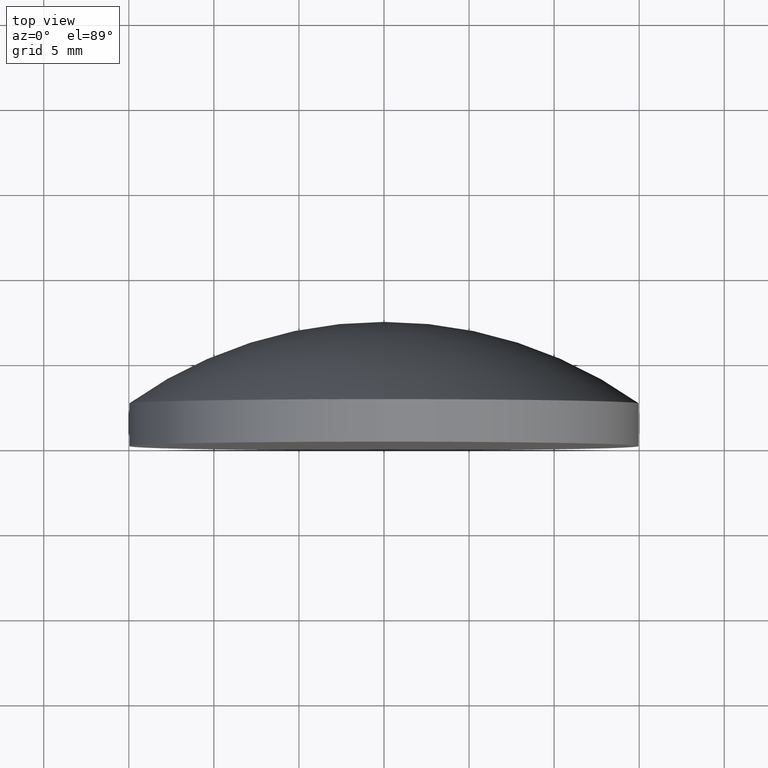
[diagram: clean part render]
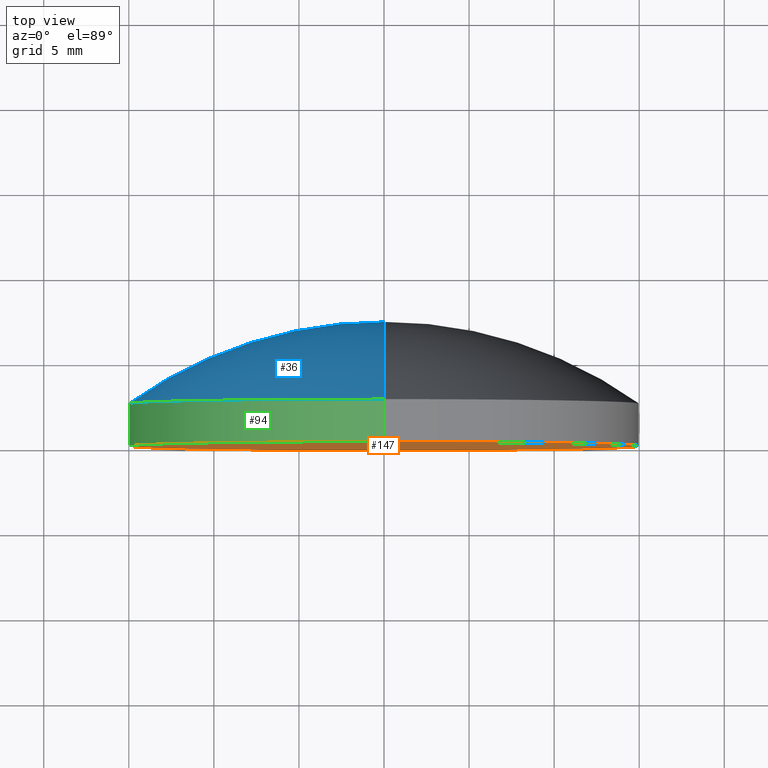
[diagram: same view with three faces highlighted in distinct colors, each labeled with its STEP entity id]
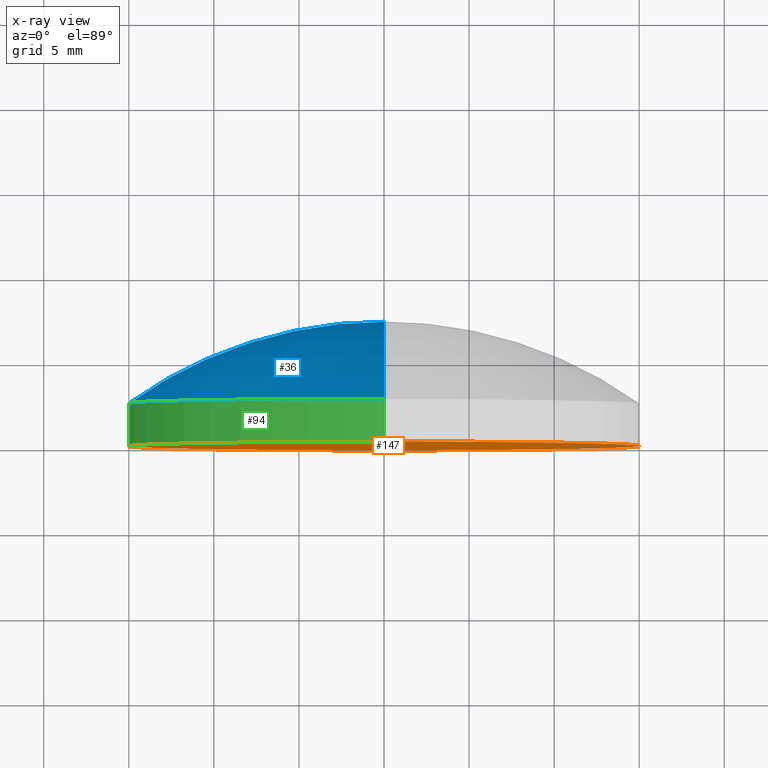
[diagram: x-ray of the same camera — body ghosted, the three highlighted faces saturated]
A machine part, top view with three faces highlighted in distinct colors.
The next image is the same camera in x-ray (body ghosted, the three faces saturated) — at least one of them is partly hidden behind the body in this view.
Their STEP definitions:

[orange] entity #147 — the highlighted planar face has unit normal (0, -1, 0).
#4 = VERTEX_POINT ( 'NONE', #62 ) ;
#6 = DIRECTION ( 'NONE',  ( -0.000000000000000000, 1.000000000000000000, -0.000000000000000000 ) ) ;
#21 = CARTESIAN_POINT ( 'NONE',  ( 0.000000000000000000, -1.734723475976807094E-15, 0.000000000000000000 ) ) ;
#24 = EDGE_CURVE ( 'NONE', #4, #48, #83, .T. ) ;
#29 = CIRCLE ( 'NONE', #76, 15.00000000000000000 ) ;
#30 = EDGE_LOOP ( 'NONE', ( #32, #133 ) ) ;
#32 = ORIENTED_EDGE ( 'NONE', *, *, #24, .F. ) ;
#48 = VERTEX_POINT ( 'NONE', #75 ) ;
#52 = DIRECTION ( 'NONE',  ( 0.000000000000000000, -1.000000000000000000, 0.000000000000000000 ) ) ;
#62 = CARTESIAN_POINT ( 'NONE',  ( 0.000000000000000000, -1.734723475976807094E-15, 15.00000000000000000 ) ) ;
#64 = CARTESIAN_POINT ( 'NONE',  ( 0.000000000000000000, -9.184850993605147944E-16, 0.000000000000000000 ) ) ;
#75 = CARTESIAN_POINT ( 'NONE',  ( 1.836970198721029589E-15, -1.734723475976807094E-15, -15.00000000000000000 ) ) ;
#76 = AXIS2_PLACEMENT_3D ( 'NONE', #21, #6, #171 ) ;
#78 = PLANE ( 'NONE',  #178 ) ;
#83 = CIRCLE ( 'NONE', #154, 15.00000000000000000 ) ;
#108 = EDGE_CURVE ( 'NONE', #48, #4, #29, .T. ) ;
#110 = DIRECTION ( 'NONE',  ( -0.000000000000000000, 1.000000000000000000, -0.000000000000000000 ) ) ;
#114 = DIRECTION ( 'NONE',  ( 0.000000000000000000, -0.000000000000000000, -1.000000000000000000 ) ) ;
#128 = CARTESIAN_POINT ( 'NONE',  ( 0.000000000000000000, -1.734723475976807094E-15, 0.000000000000000000 ) ) ;
#130 = FACE_OUTER_BOUND ( 'NONE', #30, .T. ) ;
#133 = ORIENTED_EDGE ( 'NONE', *, *, #108, .F. ) ;
#147 = ADVANCED_FACE ( 'NONE', ( #130 ), #78, .T. ) ;
#154 = AXIS2_PLACEMENT_3D ( 'NONE', #128, #110, #180 ) ;
#171 = DIRECTION ( 'NONE',  ( 0.000000000000000000, 0.000000000000000000, 1.000000000000000000 ) ) ;
#178 = AXIS2_PLACEMENT_3D ( 'NONE', #64, #52, #114 ) ;
#180 = DIRECTION ( 'NONE',  ( 0.000000000000000000, 0.000000000000000000, 1.000000000000000000 ) ) ;

[blue] entity #36 — the highlighted toroidal blend (fillet) surface has major radius 0.0008 mm and minor (blend) radius 25.84 mm.
#1 = CIRCLE ( 'NONE', #146, 15.00000000000000000 ) ;
#3 = DIRECTION ( 'NONE',  ( 1.000000000000000000, 0.000000000000000000, 1.224646799147353207E-16 ) ) ;
#5 = CARTESIAN_POINT ( 'NONE',  ( 0.000000000000000000, 2.499999999999998224, 15.00000000000000178 ) ) ;
#9 = ORIENTED_EDGE ( 'NONE', *, *, #199, .T. ) ;
#13 = DIRECTION ( 'NONE',  ( 0.000000000000000000, 0.000000000000000000, 1.000000000000000000 ) ) ;
#16 = CARTESIAN_POINT ( 'NONE',  ( -9.797125862820881380E-20, -18.53999998761622692, 0.0007999960371955425198 ) ) ;
#23 = DIRECTION ( 'NONE',  ( 0.000000000000000000, 0.000000000000000000, 1.000000000000000000 ) ) ;
#25 = CARTESIAN_POINT ( 'NONE',  ( 0.000000000000000000, -18.53999998761622692, -0.0007999960371955425198 ) ) ;
#31 = CARTESIAN_POINT ( 'NONE',  ( 0.000000000000000000, -18.53999998761622692, 0.000000000000000000 ) ) ;
#34 = AXIS2_PLACEMENT_3D ( 'NONE', #16, #3, #65 ) ;
#36 = ADVANCED_FACE ( 'NONE', ( #74 ), #72, .T. ) ;
#45 = VERTEX_POINT ( 'NONE', #197 ) ;
#53 = DIRECTION ( 'NONE',  ( 0.000000000000000000, 0.000000000000000000, 1.000000000000000000 ) ) ;
#60 = CIRCLE ( 'NONE', #142, 25.84000000000000696 ) ;
#65 = DIRECTION ( 'NONE',  ( 1.224646799147353207E-16, 0.000000000000000000, -1.000000000000000000 ) ) ;
#72 = TOROIDAL_SURFACE ( 'NONE', #170, -0.0007999960371955425198, 25.84000000000000696 ) ;
#74 = FACE_OUTER_BOUND ( 'NONE', #152, .T. ) ;
#90 = CIRCLE ( 'NONE', #34, 25.84000000000000696 ) ;
#91 = DIRECTION ( 'NONE',  ( -0.000000000000000000, 1.000000000000000000, -0.000000000000000000 ) ) ;
#100 = ORIENTED_EDGE ( 'NONE', *, *, #143, .F. ) ;
#105 = ORIENTED_EDGE ( 'NONE', *, *, #161, .T. ) ;
#135 = DIRECTION ( 'NONE',  ( -1.000000000000000000, 0.000000000000000000, 0.000000000000000000 ) ) ;
#142 = AXIS2_PLACEMENT_3D ( 'NONE', #25, #135, #23 ) ;
#143 = EDGE_CURVE ( 'NONE', #45, #192, #90, .T. ) ;
#146 = AXIS2_PLACEMENT_3D ( 'NONE', #166, #183, #53 ) ;
#152 = EDGE_LOOP ( 'NONE', ( #100, #105, #9 ) ) ;
#161 = EDGE_CURVE ( 'NONE', #45, #167, #1, .T. ) ;
#166 = CARTESIAN_POINT ( 'NONE',  ( 0.000000000000000000, 2.499999999999997780, 0.000000000000000000 ) ) ;
#167 = VERTEX_POINT ( 'NONE', #5 ) ;
#170 = AXIS2_PLACEMENT_3D ( 'NONE', #31, #91, #13 ) ;
#183 = DIRECTION ( 'NONE',  ( -0.000000000000000000, 1.000000000000000000, -0.000000000000000000 ) ) ;
#192 = VERTEX_POINT ( 'NONE', #198 ) ;
#197 = CARTESIAN_POINT ( 'NONE',  ( 1.836970198721029589E-15, 2.499999999999998224, -15.00000000000000178 ) ) ;
#198 = CARTESIAN_POINT ( 'NONE',  ( 0.000000000000000000, 7.299999999999999822, 0.000000000000000000 ) ) ;
#199 = EDGE_CURVE ( 'NONE', #167, #192, #60, .T. ) ;

[green] entity #94 — the highlighted cylindrical surface (partial cylindrical patch) has radius 15 mm, axis along (-0, 1, -0).
#1 = CIRCLE ( 'NONE', #146, 15.00000000000000000 ) ;
#4 = VERTEX_POINT ( 'NONE', #62 ) ;
#5 = CARTESIAN_POINT ( 'NONE',  ( 0.000000000000000000, 2.499999999999998224, 15.00000000000000178 ) ) ;
#6 = DIRECTION ( 'NONE',  ( -0.000000000000000000, 1.000000000000000000, -0.000000000000000000 ) ) ;
#10 = LINE ( 'NONE', #179, #184 ) ;
#12 = ORIENTED_EDGE ( 'NONE', *, *, #161, .F. ) ;
#17 = DIRECTION ( 'NONE',  ( 0.000000000000000000, 0.000000000000000000, 1.000000000000000000 ) ) ;
#19 = EDGE_CURVE ( 'NONE', #4, #167, #163, .T. ) ;
#21 = CARTESIAN_POINT ( 'NONE',  ( 0.000000000000000000, -1.734723475976807094E-15, 0.000000000000000000 ) ) ;
#27 = EDGE_LOOP ( 'NONE', ( #160, #131, #118, #12 ) ) ;
#29 = CIRCLE ( 'NONE', #76, 15.00000000000000000 ) ;
#45 = VERTEX_POINT ( 'NONE', #197 ) ;
#48 = VERTEX_POINT ( 'NONE', #75 ) ;
#53 = DIRECTION ( 'NONE',  ( 0.000000000000000000, 0.000000000000000000, 1.000000000000000000 ) ) ;
#62 = CARTESIAN_POINT ( 'NONE',  ( 0.000000000000000000, -1.734723475976807094E-15, 15.00000000000000000 ) ) ;
#63 = CARTESIAN_POINT ( 'NONE',  ( 0.000000000000000000, 7.299999999999999822, 15.00000000000000000 ) ) ;
#67 = AXIS2_PLACEMENT_3D ( 'NONE', #96, #155, #17 ) ;
#75 = CARTESIAN_POINT ( 'NONE',  ( 1.836970198721029589E-15, -1.734723475976807094E-15, -15.00000000000000000 ) ) ;
#76 = AXIS2_PLACEMENT_3D ( 'NONE', #21, #6, #171 ) ;
#82 = FACE_OUTER_BOUND ( 'NONE', #27, .T. ) ;
#94 = ADVANCED_FACE ( 'NONE', ( #82 ), #168, .T. ) ;
#96 = CARTESIAN_POINT ( 'NONE',  ( 0.000000000000000000, 7.299999999999999822, 0.000000000000000000 ) ) ;
#108 = EDGE_CURVE ( 'NONE', #48, #4, #29, .T. ) ;
#113 = VECTOR ( 'NONE', #153, 1000.000000000000000 ) ;
#118 = ORIENTED_EDGE ( 'NONE', *, *, #19, .T. ) ;
#131 = ORIENTED_EDGE ( 'NONE', *, *, #108, .T. ) ;
#137 = DIRECTION ( 'NONE',  ( -0.000000000000000000, 1.000000000000000000, -0.000000000000000000 ) ) ;
#146 = AXIS2_PLACEMENT_3D ( 'NONE', #166, #183, #53 ) ;
#153 = DIRECTION ( 'NONE',  ( -0.000000000000000000, 1.000000000000000000, -0.000000000000000000 ) ) ;
#155 = DIRECTION ( 'NONE',  ( -0.000000000000000000, 1.000000000000000000, -0.000000000000000000 ) ) ;
#160 = ORIENTED_EDGE ( 'NONE', *, *, #181, .F. ) ;
#161 = EDGE_CURVE ( 'NONE', #45, #167, #1, .T. ) ;
#163 = LINE ( 'NONE', #63, #113 ) ;
#166 = CARTESIAN_POINT ( 'NONE',  ( 0.000000000000000000, 2.499999999999997780, 0.000000000000000000 ) ) ;
#167 = VERTEX_POINT ( 'NONE', #5 ) ;
#168 = CYLINDRICAL_SURFACE ( 'NONE', #67, 15.00000000000000000 ) ;
#171 = DIRECTION ( 'NONE',  ( 0.000000000000000000, 0.000000000000000000, 1.000000000000000000 ) ) ;
#179 = CARTESIAN_POINT ( 'NONE',  ( 1.836970198721029589E-15, 7.299999999999999822, -15.00000000000000000 ) ) ;
#181 = EDGE_CURVE ( 'NONE', #48, #45, #10, .T. ) ;
#183 = DIRECTION ( 'NONE',  ( -0.000000000000000000, 1.000000000000000000, -0.000000000000000000 ) ) ;
#184 = VECTOR ( 'NONE', #137, 1000.000000000000000 ) ;
#197 = CARTESIAN_POINT ( 'NONE',  ( 1.836970198721029589E-15, 2.499999999999998224, -15.00000000000000178 ) ) ;